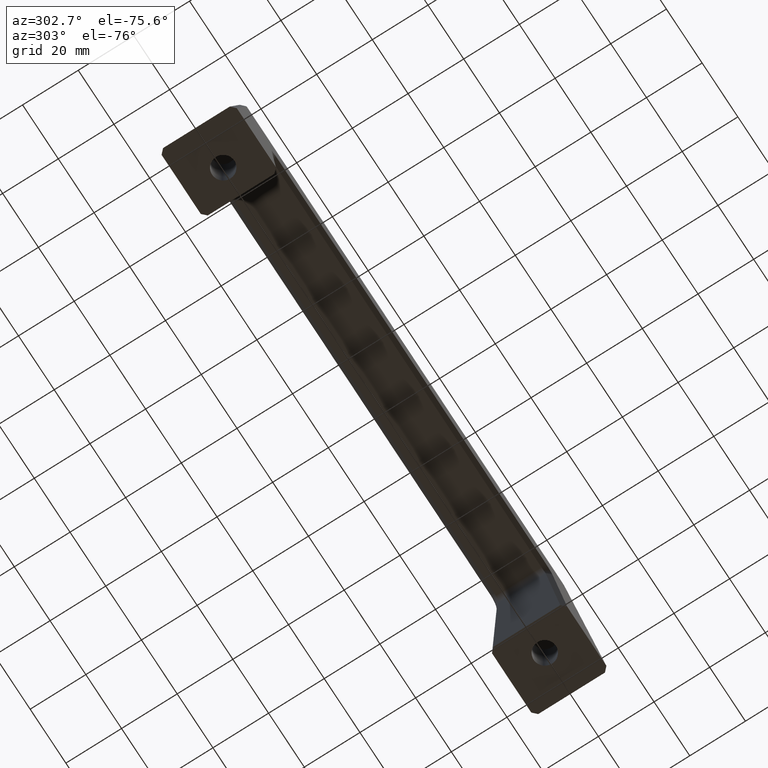
[diagram: clean part render]
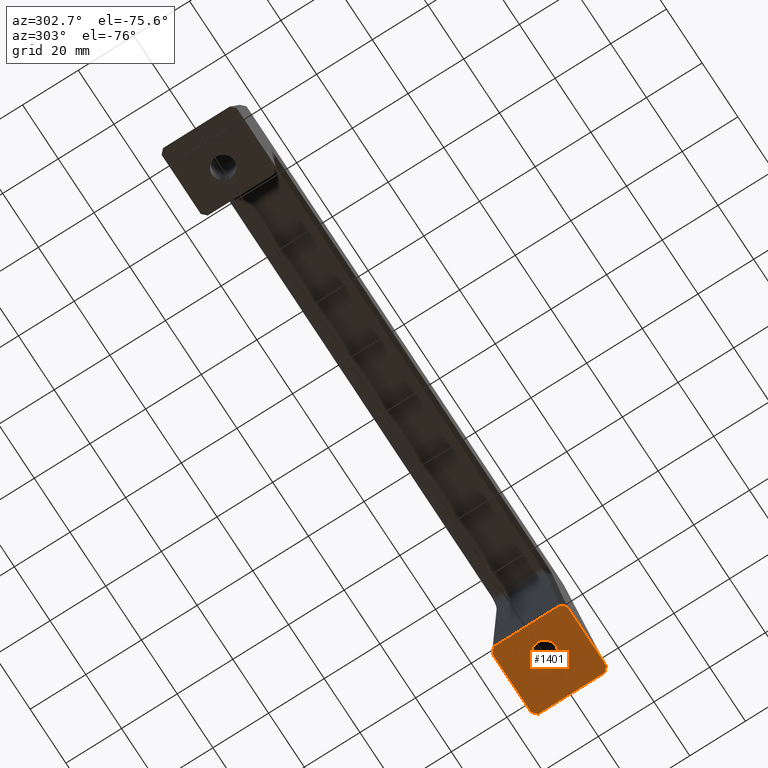
[diagram: same view with one face highlighted and labeled with its STEP entity id]
A machine part, auxiliary view. The second image highlights one B-rep face of the part: STEP entity #1401.
In plain terms, the highlighted face is a freeform B-spline surface patch.
Its self-contained STEP definition (entity closure, byte-faithful):
#79=CARTESIAN_POINT('',(90.313836383287082,3.987669334902942,-5.273559E-016));
#80=VERTEX_POINT('',#79);
#86=CARTESIAN_POINT('',(94.0,0.0,0.0));
#87=VERTEX_POINT('',#86);
#88=CARTESIAN_POINT('',(94.0,0.0,0.0));
#89=CARTESIAN_POINT('',(94.000000000000014,3.697561965933913,0.0));
#90=CARTESIAN_POINT('',(90.313836383287082,3.987669334902942,-5.273559E-016));
#98=(BOUNDED_CURVE()B_SPLINE_CURVE(2,(#88,#89,#90),.UNSPECIFIED.,.F.,.U.)B_SPLINE_CURVE_WITH_KNOTS((3,3),(0.0,0.236331300600464),.UNSPECIFIED.)CURVE()GEOMETRIC_REPRESENTATION_ITEM()RATIONAL_B_SPLINE_CURVE((1.0,0.723120658643042,0.969723356104402))REPRESENTATION_ITEM(''));
#99=EDGE_CURVE('',#87,#80,#98,.T.);
#101=CARTESIAN_POINT('',(89.686163616712903,-3.987669334902941,-5.273559E-016));
#102=VERTEX_POINT('',#101);
#103=CARTESIAN_POINT('',(89.686163616712903,-3.987669334902942,-5.273559E-016));
#104=CARTESIAN_POINT('',(89.842839571591853,-4.000000000000001,0.0));
#105=CARTESIAN_POINT('',(90.0,-4.0,0.0));
#106=CARTESIAN_POINT('',(94.000000000000014,-4.000000000000000,0.0));
#107=CARTESIAN_POINT('',(94.0,0.0,0.0));
#115=(BOUNDED_CURVE()B_SPLINE_CURVE(2,(#103,#104,#105,#106,#107),.UNSPECIFIED.,.F.,.U.)B_SPLINE_CURVE_WITH_KNOTS((3,2,3),(0.736331300600464,0.750000000000000,1.0),.UNSPECIFIED.)CURVE()GEOMETRIC_REPRESENTATION_ITEM()RATIONAL_B_SPLINE_CURVE((0.969723356104401,0.983986122543505,1.0,0.707106781186548,1.0))REPRESENTATION_ITEM(''));
#116=EDGE_CURVE('',#102,#87,#115,.T.);
#192=CARTESIAN_POINT('',(86.0,0.0,0.0));
#193=VERTEX_POINT('',#192);
#194=CARTESIAN_POINT('',(86.0,0.0,0.0));
#195=CARTESIAN_POINT('',(86.0,-3.697561965933891,0.0));
#196=CARTESIAN_POINT('',(89.686163616712903,-3.987669334902941,-5.273559E-016));
#204=(BOUNDED_CURVE()B_SPLINE_CURVE(2,(#194,#195,#196),.UNSPECIFIED.,.F.,.U.)B_SPLINE_CURVE_WITH_KNOTS((3,3),(0.500000000000000,0.736331300600463),.UNSPECIFIED.)CURVE()GEOMETRIC_REPRESENTATION_ITEM()RATIONAL_B_SPLINE_CURVE((1.0,0.723120658643043,0.969723356104400))REPRESENTATION_ITEM(''));
#205=EDGE_CURVE('',#193,#102,#204,.T.);
#207=CARTESIAN_POINT('',(90.313836383287082,3.987669334902942,-5.273559E-016));
#208=CARTESIAN_POINT('',(90.157160428408133,4.0,0.0));
#209=CARTESIAN_POINT('',(90.0,4.0,0.0));
#210=CARTESIAN_POINT('',(86.0,4.000000000000000,0.0));
#211=CARTESIAN_POINT('',(86.0,0.0,0.0));
#219=(BOUNDED_CURVE()B_SPLINE_CURVE(2,(#207,#208,#209,#210,#211),.UNSPECIFIED.,.F.,.U.)B_SPLINE_CURVE_WITH_KNOTS((3,2,3),(0.236331300600464,0.250000000000000,0.500000000000000),.UNSPECIFIED.)CURVE()GEOMETRIC_REPRESENTATION_ITEM()RATIONAL_B_SPLINE_CURVE((0.969723356104402,0.983986122543505,1.0,0.707106781186548,1.0))REPRESENTATION_ITEM(''));
#220=EDGE_CURVE('',#80,#193,#219,.T.);
#450=CARTESIAN_POINT('',(80.0,-11.993463572276140,0.0));
#451=VERTEX_POINT('',#450);
#457=CARTESIAN_POINT('',(81.504389825943193,-13.500000000000000,0.0));
#458=VERTEX_POINT('',#457);
#459=CARTESIAN_POINT('',(81.504389825943193,-13.500000000000000,0.0));
#460=CARTESIAN_POINT('',(80.0,-11.993463572276140,0.0));
#461=QUASI_UNIFORM_CURVE('',1,(#459,#460),.UNSPECIFIED.,.F.,.U.);
#462=EDGE_CURVE('',#458,#451,#461,.T.);
#640=CARTESIAN_POINT('',(80.0,11.993463572276500,0.0));
#641=VERTEX_POINT('',#640);
#642=CARTESIAN_POINT('',(81.504389825942582,13.500000000000000,0.0));
#643=VERTEX_POINT('',#642);
#644=CARTESIAN_POINT('',(80.0,11.993463572276500,0.0));
#645=CARTESIAN_POINT('',(81.504389825942582,13.500000000000000,0.0));
#646=QUASI_UNIFORM_CURVE('',1,(#644,#645),.UNSPECIFIED.,.F.,.U.);
#647=EDGE_CURVE('',#641,#643,#646,.T.);
#839=CARTESIAN_POINT('',(105.0,-11.993764509276900,0.0));
#840=VERTEX_POINT('',#839);
#841=CARTESIAN_POINT('',(103.459703175940600,-13.500000000000000,0.0));
#842=VERTEX_POINT('',#841);
#843=CARTESIAN_POINT('',(105.0,-11.993764509276900,0.0));
#844=CARTESIAN_POINT('',(103.459703175940600,-13.500000000000000,0.0));
#845=QUASI_UNIFORM_CURVE('',1,(#843,#844),.UNSPECIFIED.,.F.,.U.);
#846=EDGE_CURVE('',#840,#842,#845,.T.);
#1156=CARTESIAN_POINT('',(103.459703866354000,13.500000000000000,0.0));
#1157=VERTEX_POINT('',#1156);
#1158=CARTESIAN_POINT('',(105.0,11.993765184422861,0.0));
#1159=VERTEX_POINT('',#1158);
#1160=CARTESIAN_POINT('',(103.459703866354000,13.500000000000000,0.0));
#1161=CARTESIAN_POINT('',(105.0,11.993765184422861,0.0));
#1162=QUASI_UNIFORM_CURVE('',1,(#1160,#1161),.UNSPECIFIED.,.F.,.U.);
#1163=EDGE_CURVE('',#1157,#1159,#1162,.T.);
#1293=CARTESIAN_POINT('',(81.504389825942582,13.500000000000000,0.0));
#1294=CARTESIAN_POINT('',(103.459703866354000,13.500000000000000,0.0));
#1295=QUASI_UNIFORM_CURVE('',1,(#1293,#1294),.UNSPECIFIED.,.F.,.U.);
#1296=EDGE_CURVE('',#643,#1157,#1295,.T.);
#1323=CARTESIAN_POINT('',(81.504389825943193,-13.500000000000000,0.0));
#1324=CARTESIAN_POINT('',(103.459703175940600,-13.500000000000000,0.0));
#1325=QUASI_UNIFORM_CURVE('',1,(#1323,#1324),.UNSPECIFIED.,.F.,.U.);
#1326=EDGE_CURVE('',#458,#842,#1325,.T.);
#1367=CARTESIAN_POINT('',(105.0,11.993765184422861,0.0));
#1368=CARTESIAN_POINT('',(105.0,-11.993764509276900,0.0));
#1369=QUASI_UNIFORM_CURVE('',1,(#1367,#1368),.UNSPECIFIED.,.F.,.U.);
#1370=EDGE_CURVE('',#1159,#840,#1369,.T.);
#1376=CARTESIAN_POINT('',(106.248749951545190,-14.848649947668759,0.0));
#1377=CARTESIAN_POINT('',(78.751249377902596,-14.848649947668759,0.0));
#1378=CARTESIAN_POINT('',(106.248749951545190,14.848650671865190,0.0));
#1379=CARTESIAN_POINT('',(78.751249377902596,14.848650671865190,0.0));
#1380=B_SPLINE_SURFACE_WITH_KNOTS('',1,1,((#1376,#1378),(#1377,#1379)),.UNSPECIFIED.,.F.,.F.,.U.,(2,2),(2,2),(0.0,27.497500573642551),(0.0,29.697300619533959),.UNSPECIFIED.);
#1381=ORIENTED_EDGE('',*,*,#1326,.F.);
#1382=ORIENTED_EDGE('',*,*,#462,.T.);
#1383=CARTESIAN_POINT('',(80.0,11.993463572276500,0.0));
#1384=CARTESIAN_POINT('',(80.0,-11.993463572276140,0.0));
#1385=QUASI_UNIFORM_CURVE('',1,(#1383,#1384),.UNSPECIFIED.,.F.,.U.);
#1386=EDGE_CURVE('',#641,#451,#1385,.T.);
#1387=ORIENTED_EDGE('',*,*,#1386,.F.);
#1388=ORIENTED_EDGE('',*,*,#647,.T.);
#1389=ORIENTED_EDGE('',*,*,#1296,.T.);
#1390=ORIENTED_EDGE('',*,*,#1163,.T.);
#1391=ORIENTED_EDGE('',*,*,#1370,.T.);
#1392=ORIENTED_EDGE('',*,*,#846,.T.);
#1393=EDGE_LOOP('',(#1381,#1382,#1387,#1388,#1389,#1390,#1391,#1392));
#1394=FACE_OUTER_BOUND('',#1393,.T.);
#1395=ORIENTED_EDGE('',*,*,#205,.T.);
#1396=ORIENTED_EDGE('',*,*,#116,.T.);
#1397=ORIENTED_EDGE('',*,*,#99,.T.);
#1398=ORIENTED_EDGE('',*,*,#220,.T.);
#1399=EDGE_LOOP('',(#1395,#1396,#1397,#1398));
#1400=FACE_BOUND('',#1399,.T.);
#1401=ADVANCED_FACE('',(#1394,#1400),#1380,.T.);